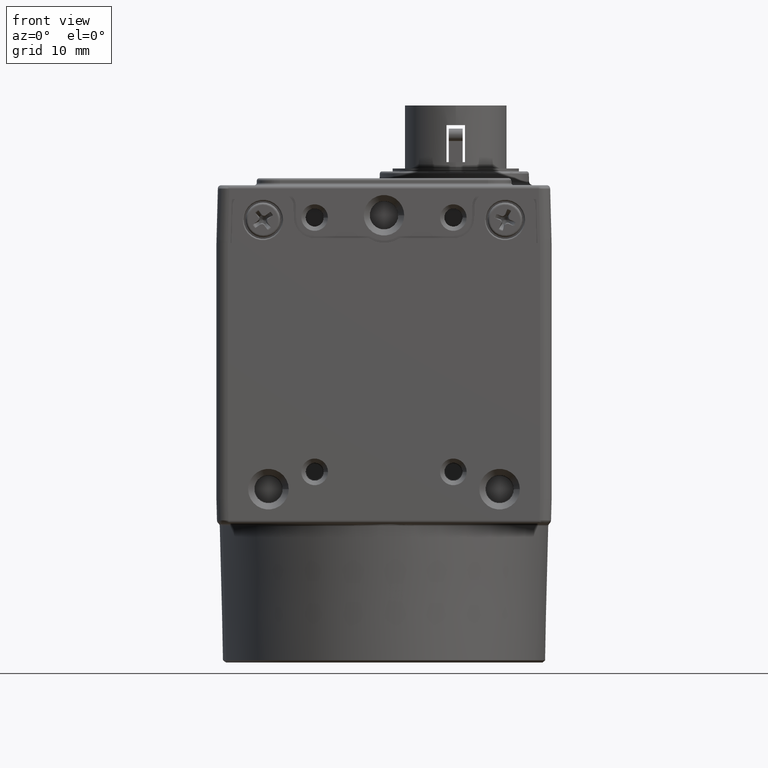
[diagram: clean part render]
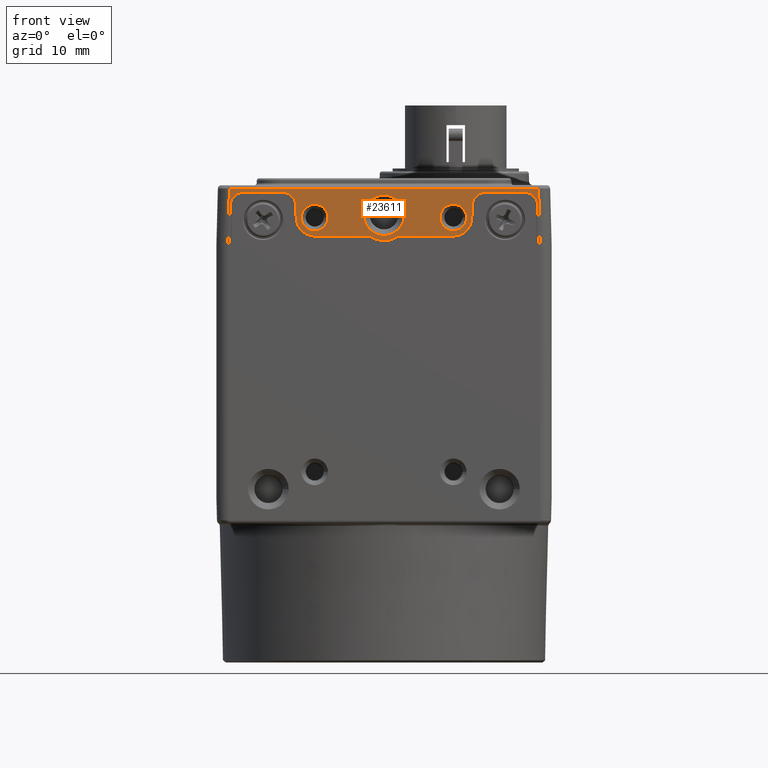
[diagram: same view with one face highlighted and labeled with its STEP entity id]
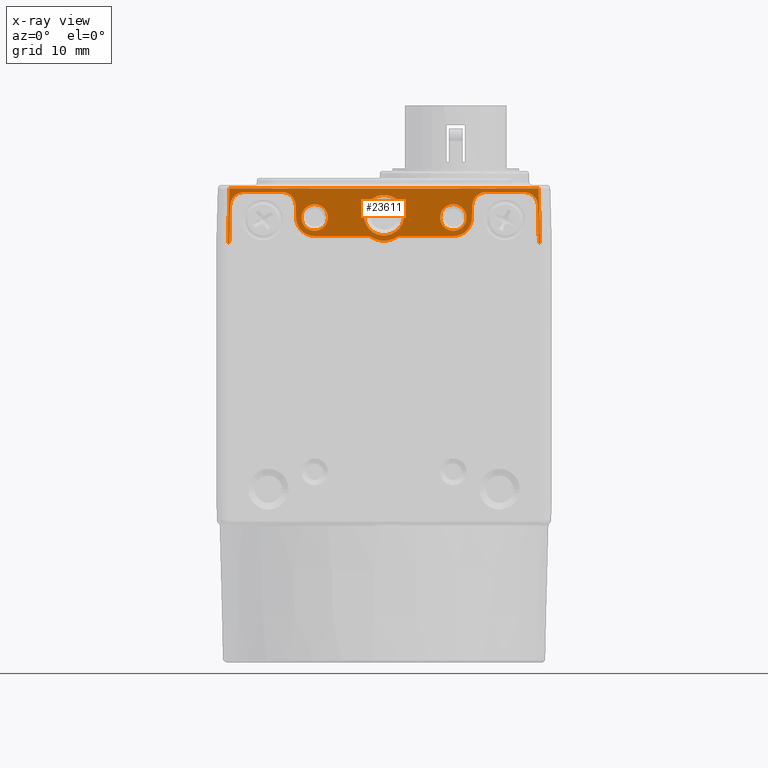
[diagram: x-ray of the same camera — body ghosted, the highlighted face saturated]
A machine part, front view. The second image highlights one B-rep face of the part: STEP entity #23611.
The next image is the same camera in x-ray: the body ghosted, the highlighted face saturated — about 0% of this face is hidden behind the body in this view.
In plain terms, the highlighted planar face has unit normal (0, 1, 0).
Its self-contained STEP definition (entity closure, byte-faithful):
#19787=CARTESIAN_POINT('',(-13.315382489692757,-14.400000002154840,39.531412337969478));
#19788=VERTEX_POINT('',#19787);
#19795=CARTESIAN_POINT('',(-13.399999999732541,-14.400000002154844,36.300000000000033));
#19796=VERTEX_POINT('',#19795);
#19797=CARTESIAN_POINT('',(-13.399999999732543,-14.400000002154844,36.300000000000033));
#19798=DIRECTION('',(0.026176948307877,1.648581E-015,0.999657324975557));
#19799=VECTOR('',#19798,3.232520041853799);
#19800=LINE('',#19797,#19799);
#19801=EDGE_CURVE('',#19796,#19788,#19800,.T.);
#19826=CARTESIAN_POINT('',(-12.115793699722083,-14.400000002154796,40.700000000000017));
#19827=VERTEX_POINT('',#19826);
#19834=CARTESIAN_POINT('',(-12.115793699722088,-14.400000002154794,39.500000000000021));
#19835=DIRECTION('',(-3.655725E-014,1.000000000000000,9.572853E-016));
#19836=DIRECTION('',(0.999657324975557,3.656978E-014,-0.026176948307877));
#19837=AXIS2_PLACEMENT_3D('',#19834,#19835,#19836);
#19838=CIRCLE('',#19837,1.200000000000000);
#19839=EDGE_CURVE('',#19788,#19827,#19838,.T.);
#19858=CARTESIAN_POINT('',(-8.827145740276141,-14.400000002154677,40.700000000000010));
#19859=VERTEX_POINT('',#19858);
#19866=CARTESIAN_POINT('',(-12.115793699722083,-14.400000002154796,40.700000000000024));
#19867=DIRECTION('',(1.0,0.0,0.0));
#19868=VECTOR('',#19867,3.288647959445942);
#19869=LINE('',#19866,#19868);
#19870=EDGE_CURVE('',#19827,#19859,#19869,.T.);
#19890=CARTESIAN_POINT('',(-7.627556950305475,-14.400000002154631,39.531412337969456));
#19891=VERTEX_POINT('',#19890);
#19898=CARTESIAN_POINT('',(-8.827145740276146,-14.400000002154673,39.500000000000014));
#19899=DIRECTION('',(0.0,1.0,0.0));
#19900=DIRECTION('',(0.0,0.0,-1.0));
#19901=AXIS2_PLACEMENT_3D('',#19898,#19899,#19900);
#19902=CIRCLE('',#19901,1.200000000000000);
#19903=EDGE_CURVE('',#19859,#19891,#19902,.T.);
#19922=CARTESIAN_POINT('',(-7.599451719693425,-14.400000002154631,38.458116882707408));
#19923=VERTEX_POINT('',#19922);
#19930=CARTESIAN_POINT('',(-7.627556950305475,-14.400000002154631,39.531412337969456));
#19931=DIRECTION('',(0.026176948307867,0.0,-0.999657324975557));
#19932=VECTOR('',#19931,1.073663372884595);
#19933=LINE('',#19930,#19932);
#19934=EDGE_CURVE('',#19891,#19923,#19933,.T.);
#19954=CARTESIAN_POINT('',(-5.999999999732538,-14.400000002154574,36.899999999999999));
#19955=VERTEX_POINT('',#19954);
#19962=CARTESIAN_POINT('',(-5.999999999732531,-14.400000002154572,38.500000000000000));
#19963=DIRECTION('',(0.0,-1.0,0.0));
#19964=DIRECTION('',(0.0,0.0,-1.0));
#19965=AXIS2_PLACEMENT_3D('',#19962,#19963,#19964);
#19966=CIRCLE('',#19965,1.600000000000000);
#19967=EDGE_CURVE('',#19923,#19955,#19966,.T.);
#19986=CARTESIAN_POINT('',(-1.264911063799889,-14.400000002154400,36.899999999999984));
#19987=VERTEX_POINT('',#19986);
#19994=CARTESIAN_POINT('',(-5.999999999732538,-14.400000002154574,36.899999999999999));
#19995=DIRECTION('',(1.0,0.0,0.0));
#19996=VECTOR('',#19995,4.735088935932648);
#19997=LINE('',#19994,#19996);
#19998=EDGE_CURVE('',#19955,#19987,#19997,.T.);
#20018=CARTESIAN_POINT('',(1.264911064334814,-14.400000002154307,36.899999999999970));
#20019=VERTEX_POINT('',#20018);
#20026=CARTESIAN_POINT('',(2.674691E-010,-14.400000002154352,38.699999999999974));
#20027=DIRECTION('',(1.139971E-014,-1.0,-1.622208E-014));
#20028=DIRECTION('',(0.574959574576066,1.982698E-014,-0.818181818181820));
#20029=AXIS2_PLACEMENT_3D('',#20026,#20027,#20028);
#20030=CIRCLE('',#20029,2.200000000000000);
#20031=EDGE_CURVE('',#19987,#20019,#20030,.T.);
#20050=CARTESIAN_POINT('',(6.000000000267463,-14.400000002154133,36.899999999999956));
#20051=VERTEX_POINT('',#20050);
#20058=CARTESIAN_POINT('',(1.264911064334814,-14.400000002154309,36.899999999999970));
#20059=DIRECTION('',(1.0,0.0,0.0));
#20060=VECTOR('',#20059,4.735088935932651);
#20061=LINE('',#20058,#20060);
#20062=EDGE_CURVE('',#20019,#20051,#20061,.T.);
#20487=CARTESIAN_POINT('',(-13.492146099732844,-14.400000002154849,36.586837623377846));
#20488=VERTEX_POINT('',#20487);
#20497=CARTESIAN_POINT('',(-13.492146099732844,-14.400000002154849,36.300000000000026));
#20498=VERTEX_POINT('',#20497);
#20506=CARTESIAN_POINT('',(-13.492146099732842,-14.400000002154849,36.586837623377846));
#20507=DIRECTION('',(0.0,0.0,-1.0));
#20508=VECTOR('',#20507,0.286837623377821);
#20509=LINE('',#20506,#20508);
#20510=EDGE_CURVE('',#20488,#20498,#20509,.T.);
#20566=CARTESIAN_POINT('',(13.492146100267760,-14.400000002153860,36.586837623377846));
#20567=VERTEX_POINT('',#20566);
#20575=CARTESIAN_POINT('',(13.492146100267760,-14.400000002153860,36.299999999999926));
#20576=VERTEX_POINT('',#20575);
#20577=CARTESIAN_POINT('',(13.492146100267766,-14.400000002153860,36.586837623377846));
#20578=DIRECTION('',(0.0,0.0,-1.0));
#20579=VECTOR('',#20578,0.286837623377920);
#20580=LINE('',#20577,#20579);
#20581=EDGE_CURVE('',#20567,#20576,#20580,.T.);
#20697=CARTESIAN_POINT('',(-13.376583375866479,-14.400000002154842,41.000000000000021));
#20698=VERTEX_POINT('',#20697);
#20699=CARTESIAN_POINT('',(-13.492146099732876,-14.400000002154849,36.586837623375303));
#20700=DIRECTION('',(0.026176948307877,1.609502E-015,0.999657324975557));
#20701=VECTOR('',#20700,4.414675175548414);
#20702=LINE('',#20699,#20701);
#20703=EDGE_CURVE('',#20488,#20698,#20702,.T.);
#21761=CARTESIAN_POINT('',(13.376583376401429,-14.400000002153861,40.999999999999929));
#21762=VERTEX_POINT('',#21761);
#21772=CARTESIAN_POINT('',(-13.376583375866478,-14.400000002154842,41.000000000000028));
#21773=DIRECTION('',(1.0,0.0,0.0));
#21774=VECTOR('',#21773,26.753166752267909);
#21775=LINE('',#21772,#21774);
#21776=EDGE_CURVE('',#20698,#21762,#21775,.T.);
#21891=CARTESIAN_POINT('',(13.376583376401431,-14.400000002153861,40.999999999999929));
#21892=DIRECTION('',(0.026176948307870,4.023754E-016,-0.999657324975557));
#21893=VECTOR('',#21892,4.414675175545769);
#21894=LINE('',#21891,#21893);
#21895=EDGE_CURVE('',#21762,#20567,#21894,.T.);
#23319=CARTESIAN_POINT('',(1.749990727542592,-14.400000002154288,38.699999999999967));
#23320=VERTEX_POINT('',#23319);
#23321=CARTESIAN_POINT('',(2.674691E-010,-14.400000002154352,38.699999999999974));
#23322=DIRECTION('',(0.0,1.0,0.0));
#23323=DIRECTION('',(1.0,0.0,0.0));
#23324=AXIS2_PLACEMENT_3D('',#23321,#23322,#23323);
#23325=CIRCLE('',#23324,1.749990727275122);
#23326=EDGE_CURVE('',#23320,#23320,#23325,.T.);
#23339=CARTESIAN_POINT('',(-4.850013765964586,-14.400000002154529,38.500000000000000));
#23340=VERTEX_POINT('',#23339);
#23341=CARTESIAN_POINT('',(-5.999999999732531,-14.400000002154572,38.500000000000000));
#23342=DIRECTION('',(0.0,1.0,0.0));
#23343=DIRECTION('',(1.0,0.0,0.0));
#23344=AXIS2_PLACEMENT_3D('',#23341,#23342,#23343);
#23345=CIRCLE('',#23344,1.149986233767947);
#23346=EDGE_CURVE('',#23340,#23340,#23345,.T.);
#23359=CARTESIAN_POINT('',(7.149986234035416,-14.400000002154091,38.499999999999950));
#23360=VERTEX_POINT('',#23359);
#23361=CARTESIAN_POINT('',(6.000000000267471,-14.400000002154131,38.499999999999950));
#23362=DIRECTION('',(0.0,1.0,0.0));
#23363=DIRECTION('',(1.0,0.0,0.0));
#23364=AXIS2_PLACEMENT_3D('',#23361,#23362,#23363);
#23365=CIRCLE('',#23364,1.149986233767945);
#23366=EDGE_CURVE('',#23360,#23360,#23365,.T.);
#23385=CARTESIAN_POINT('',(7.599451720228361,-14.400000002154076,38.458116882707351));
#23386=VERTEX_POINT('',#23385);
#23393=CARTESIAN_POINT('',(6.000000000267471,-14.400000002154131,38.499999999999950));
#23394=DIRECTION('',(3.655725E-014,-1.000000000000000,-9.572853E-016));
#23395=DIRECTION('',(0.999657324975557,3.656978E-014,-0.026176948307876));
#23396=AXIS2_PLACEMENT_3D('',#23393,#23394,#23395);
#23397=CIRCLE('',#23396,1.600000000000000);
#23398=EDGE_CURVE('',#20051,#23386,#23397,.T.);
#23417=CARTESIAN_POINT('',(7.627556950840423,-14.400000002154073,39.531412337969400));
#23418=VERTEX_POINT('',#23417);
#23425=CARTESIAN_POINT('',(7.599451720228361,-14.400000002154075,38.458116882707351));
#23426=DIRECTION('',(0.026176948307878,1.654482E-015,0.999657324975557));
#23427=VECTOR('',#23426,1.073663372884588);
#23428=LINE('',#23425,#23427);
#23429=EDGE_CURVE('',#23386,#23418,#23428,.T.);
#23449=CARTESIAN_POINT('',(8.827145740811096,-14.400000002154027,40.699999999999939));
#23450=VERTEX_POINT('',#23449);
#23457=CARTESIAN_POINT('',(8.827145740811092,-14.400000002154025,39.499999999999943));
#23458=DIRECTION('',(-3.655725E-014,1.000000000000000,9.572853E-016));
#23459=DIRECTION('',(0.999657324975557,3.656978E-014,-0.026176948307877));
#23460=AXIS2_PLACEMENT_3D('',#23457,#23458,#23459);
#23461=CIRCLE('',#23460,1.200000000000000);
#23462=EDGE_CURVE('',#23418,#23450,#23461,.T.);
#23481=CARTESIAN_POINT('',(12.115793700257038,-14.400000002153908,40.699999999999932));
#23482=VERTEX_POINT('',#23481);
#23489=CARTESIAN_POINT('',(8.827145740811096,-14.400000002154028,40.699999999999946));
#23490=DIRECTION('',(1.0,0.0,0.0));
#23491=VECTOR('',#23490,3.288647959445944);
#23492=LINE('',#23489,#23491);
#23493=EDGE_CURVE('',#23450,#23482,#23492,.T.);
#23513=CARTESIAN_POINT('',(13.315382490227702,-14.400000002153863,39.531412337969371));
#23514=VERTEX_POINT('',#23513);
#23521=CARTESIAN_POINT('',(12.115793700257031,-14.400000002153906,39.499999999999929));
#23522=DIRECTION('',(0.0,1.0,0.0));
#23523=DIRECTION('',(0.0,0.0,-1.0));
#23524=AXIS2_PLACEMENT_3D('',#23521,#23522,#23523);
#23525=CIRCLE('',#23524,1.200000000000000);
#23526=EDGE_CURVE('',#23482,#23514,#23525,.T.);
#23545=CARTESIAN_POINT('',(13.400000000267461,-14.400000002153863,36.299999999999926));
#23546=VERTEX_POINT('',#23545);
#23553=CARTESIAN_POINT('',(13.315382490227702,-14.400000002153865,39.531412337969371));
#23554=DIRECTION('',(0.026176948307869,0.0,-0.999657324975557));
#23555=VECTOR('',#23554,3.232520041853799);
#23556=LINE('',#23553,#23555);
#23557=EDGE_CURVE('',#23514,#23546,#23556,.T.);
#23563=CARTESIAN_POINT('',(2.674602E-010,-14.400000002154353,36.299999999999976));
#23564=DIRECTION('',(0.0,1.0,0.0));
#23565=DIRECTION('',(0.0,0.0,-1.0));
#23566=AXIS2_PLACEMENT_3D('',#23563,#23564,#23565);
#23567=PLANE('',#23566);
#23568=ORIENTED_EDGE('',*,*,#20510,.T.);
#23569=CARTESIAN_POINT('',(-13.399999999732541,-14.400000002154844,36.299999999999983));
#23570=DIRECTION('',(-1.0,0.0,0.0));
#23571=VECTOR('',#23570,0.092146100000305);
#23572=LINE('',#23569,#23571);
#23573=EDGE_CURVE('',#19796,#20498,#23572,.T.);
#23574=ORIENTED_EDGE('',*,*,#23573,.F.);
#23575=ORIENTED_EDGE('',*,*,#19801,.T.);
#23576=ORIENTED_EDGE('',*,*,#19839,.T.);
#23577=ORIENTED_EDGE('',*,*,#19870,.T.);
#23578=ORIENTED_EDGE('',*,*,#19903,.T.);
#23579=ORIENTED_EDGE('',*,*,#19934,.T.);
#23580=ORIENTED_EDGE('',*,*,#19967,.T.);
#23581=ORIENTED_EDGE('',*,*,#19998,.T.);
#23582=ORIENTED_EDGE('',*,*,#20031,.T.);
#23583=ORIENTED_EDGE('',*,*,#20062,.T.);
#23584=ORIENTED_EDGE('',*,*,#23398,.T.);
#23585=ORIENTED_EDGE('',*,*,#23429,.T.);
#23586=ORIENTED_EDGE('',*,*,#23462,.T.);
#23587=ORIENTED_EDGE('',*,*,#23493,.T.);
#23588=ORIENTED_EDGE('',*,*,#23526,.T.);
#23589=ORIENTED_EDGE('',*,*,#23557,.T.);
#23590=CARTESIAN_POINT('',(13.492146100267762,-14.400000002153860,36.300000000000026));
#23591=DIRECTION('',(-1.0,0.0,0.0));
#23592=VECTOR('',#23591,0.092146100000301);
#23593=LINE('',#23590,#23592);
#23594=EDGE_CURVE('',#20576,#23546,#23593,.T.);
#23595=ORIENTED_EDGE('',*,*,#23594,.F.);
#23596=ORIENTED_EDGE('',*,*,#20581,.F.);
#23597=ORIENTED_EDGE('',*,*,#21895,.F.);
#23598=ORIENTED_EDGE('',*,*,#21776,.F.);
#23599=ORIENTED_EDGE('',*,*,#20703,.F.);
#23600=EDGE_LOOP('',(#23568,#23574,#23575,#23576,#23577,#23578,#23579,#23580,#23581,#23582,#23583,#23584,#23585,#23586,#23587,#23588,#23589,#23595,#23596,#23597,#23598,#23599));
#23601=FACE_OUTER_BOUND('',#23600,.T.);
#23602=ORIENTED_EDGE('',*,*,#23326,.T.);
#23603=EDGE_LOOP('',(#23602));
#23604=FACE_BOUND('',#23603,.T.);
#23605=ORIENTED_EDGE('',*,*,#23346,.T.);
#23606=EDGE_LOOP('',(#23605));
#23607=FACE_BOUND('',#23606,.T.);
#23608=ORIENTED_EDGE('',*,*,#23366,.T.);
#23609=EDGE_LOOP('',(#23608));
#23610=FACE_BOUND('',#23609,.T.);
#23611=ADVANCED_FACE('',(#23601,#23604,#23607,#23610),#23567,.F.);